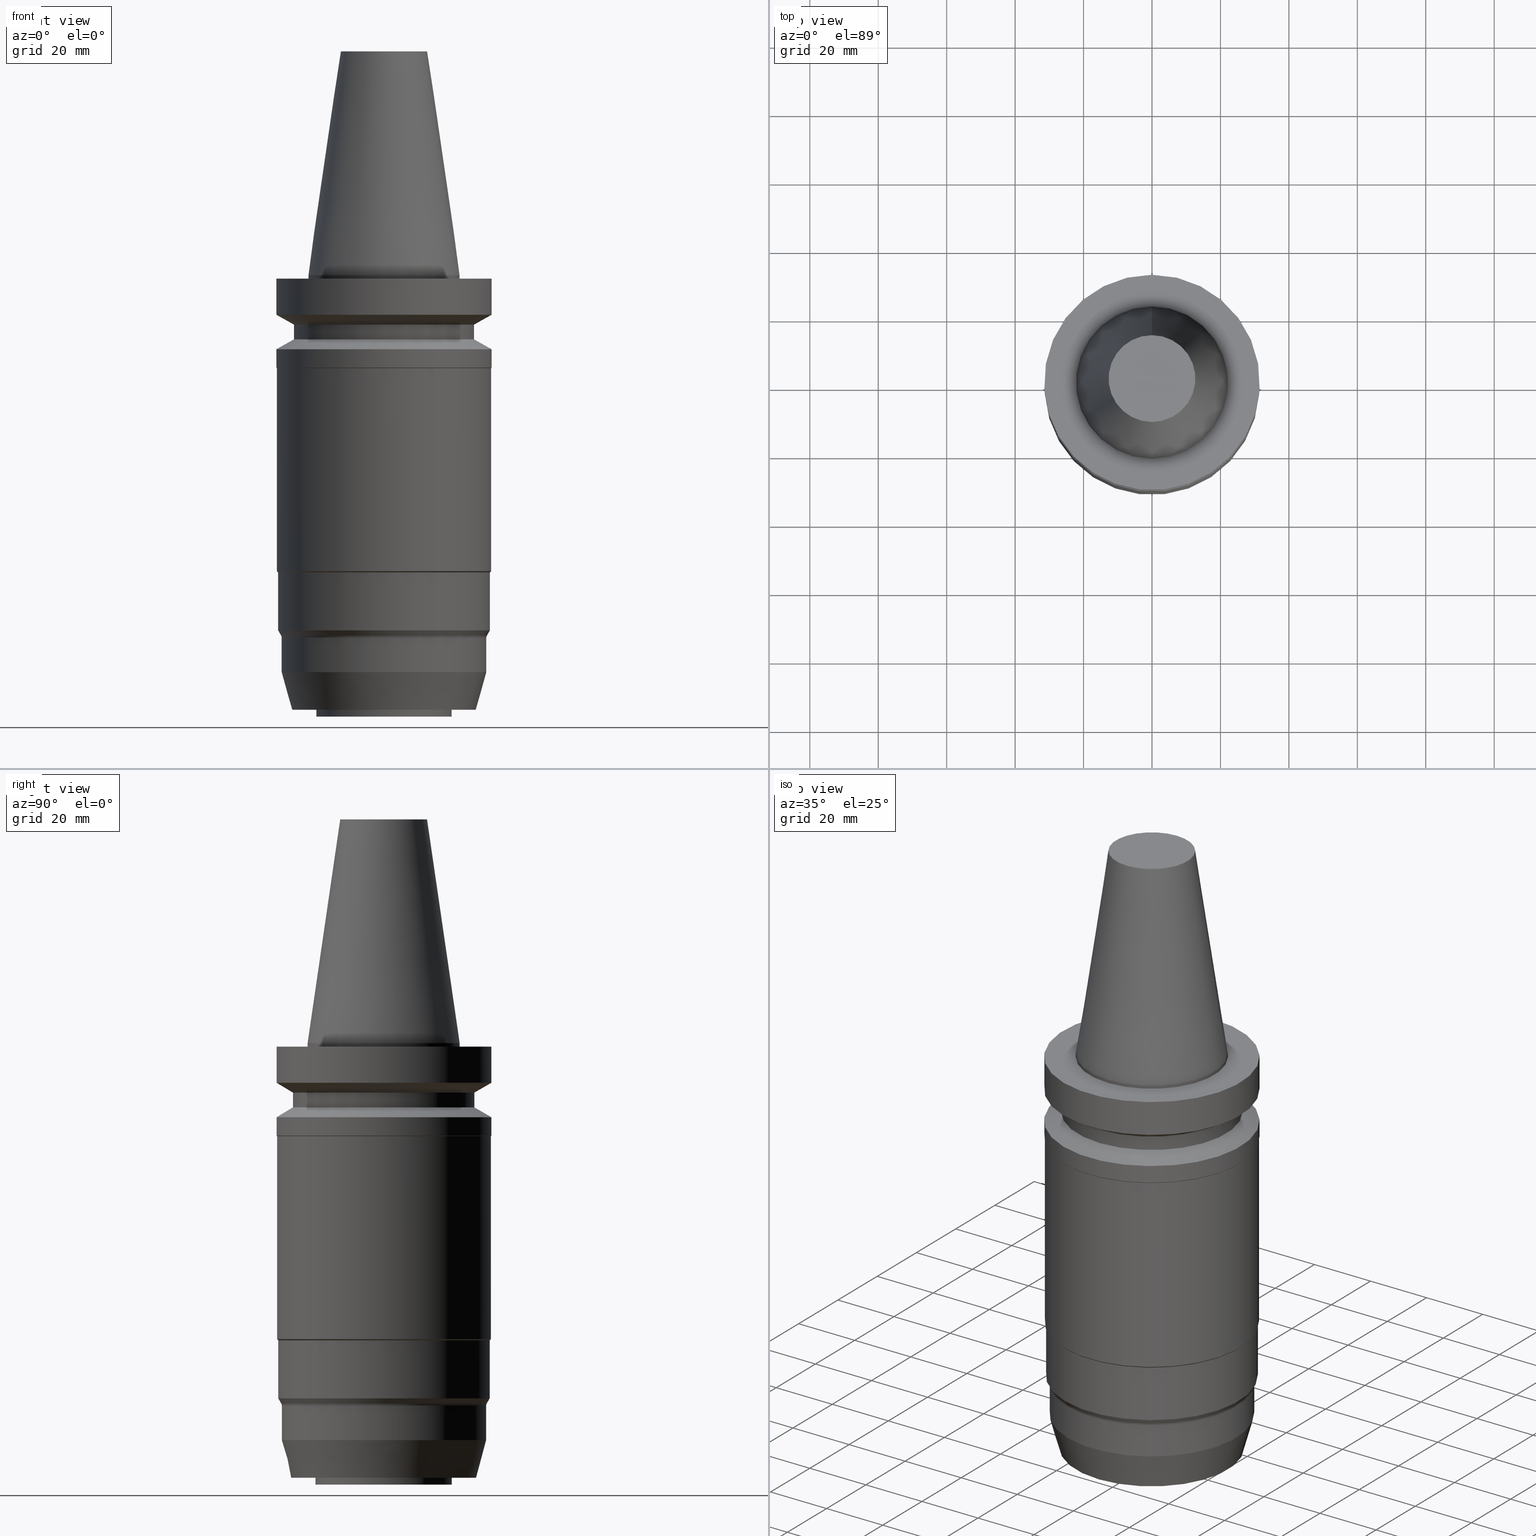
[diagram: canonical four-view strip — front | top / right | iso, engineering-drawing reading convention]
A machine part, canonical four-view strip (front | top / right | iso — engineering-drawing reading convention). The complete STEP part file that produces these views, byte-faithful:
ISO-10303-21;
HEADER;
FILE_DESCRIPTION((''),'1');
FILE_NAME('V:/90_\X2\53D65F9730C730FC30BF\X0\/00_\X2\6DE18DEF30C730FC30BF\X0\/ALL/BBT-BKUS\X2\FF76FF80FF9BFF78FF9E752852A05DE556F3\X0\201801/BBT40-MEGADS-A/BBT40-MEGA1.000DS-5A.stp','2018-02-07T03:58:34',(''),(''),'Spatial Interop R21 SP3','Kubotek KeyCreator 2011 V10.0.2 (22737)',' ');
FILE_SCHEMA(('automotive_design'));
ENDSEC;
DATA;
#1=MECHANICAL_DESIGN_GEOMETRIC_PRESENTATION_REPRESENTATION(' ',(#10,#11,#12,#13,#14,#15,#16,#17,#18,#19,#20,#21,#22,#23,#24,#25,#26,#27,#28,#29,#30,#31,#32,#33,#34,#35,#36,#37,#38,#39,#40,#41,#42,#43,#44,#45,#46,#47,#48,#49),#6);
#2=PRODUCT_DEFINITION_CONTEXT('',#50,'design');
#3=APPLICATION_PROTOCOL_DEFINITION('INTERNATIONAL STANDARD','automotive_design',1994,#50);
#4=PRODUCT_CATEGORY_RELATIONSHIP('NONE','NONE',#51,#52);
#5=SHAPE_DEFINITION_REPRESENTATION(#53,#54);
#6= (GEOMETRIC_REPRESENTATION_CONTEXT(3)GLOBAL_UNCERTAINTY_ASSIGNED_CONTEXT((#57))GLOBAL_UNIT_ASSIGNED_CONTEXT((#59,#60,#61))REPRESENTATION_CONTEXT('NONE','WORKSPACE'));
#10=STYLED_ITEM('',(#63,#64),#65);
#11=STYLED_ITEM('',(#66),#67);
#12=STYLED_ITEM('',(#68),#69);
#13=STYLED_ITEM('',(#70,#71),#72);
#14=STYLED_ITEM('',(#73,#74),#75);
#15=STYLED_ITEM('',(#76),#77);
#16=STYLED_ITEM('',(#78),#79);
#17=STYLED_ITEM('',(#80,#81),#82);
#18=STYLED_ITEM('',(#83,#84),#85);
#19=STYLED_ITEM('',(#86,#87),#88);
#20=STYLED_ITEM('',(#89),#90);
#21=STYLED_ITEM('',(#91,#92),#93);
#22=STYLED_ITEM('',(#94),#95);
#23=STYLED_ITEM('',(#96),#97);
#24=STYLED_ITEM('',(#98),#99);
#25=STYLED_ITEM('',(#100,#101),#102);
#26=STYLED_ITEM('',(#103,#104),#105);
#27=STYLED_ITEM('',(#106,#107),#108);
#28=STYLED_ITEM('',(#109),#110);
#29=STYLED_ITEM('',(#111),#112);
#30=STYLED_ITEM('',(#113,#114),#115);
#31=STYLED_ITEM('',(#116),#117);
#32=STYLED_ITEM('',(#118,#119),#120);
#33=STYLED_ITEM('',(#121,#122),#123);
#34=STYLED_ITEM('',(#124),#125);
#35=STYLED_ITEM('',(#126),#127);
#36=STYLED_ITEM('',(#128),#129);
#37=STYLED_ITEM('',(#130,#131),#132);
#38=STYLED_ITEM('',(#133),#134);
#39=STYLED_ITEM('',(#135,#136),#137);
#40=STYLED_ITEM('',(#138),#139);
#41=STYLED_ITEM('',(#140),#141);
#42=STYLED_ITEM('',(#142,#143),#144);
#43=STYLED_ITEM('',(#145,#146),#147);
#44=STYLED_ITEM('',(#148,#149),#150);
#45=STYLED_ITEM('',(#151,#152),#153);
#46=STYLED_ITEM('',(#154,#155),#156);
#47=STYLED_ITEM('',(#157,#158),#159);
#48=STYLED_ITEM('',(#160),#161);
#49=STYLED_ITEM('',(#162),#163);
#50=APPLICATION_CONTEXT(' ');
#51=PRODUCT_CATEGORY('part','NONE');
#52=PRODUCT_RELATED_PRODUCT_CATEGORY('detail',' ',(#164));
#53=PRODUCT_DEFINITION_SHAPE('NONE','NONE',#165);
#54=ADVANCED_BREP_SHAPE_REPRESENTATION('Unnamed[1]',(#153,#166),#6);
#57=UNCERTAINTY_MEASURE_WITH_UNIT(LENGTH_MEASURE(1.0E-006),#59,'','');
#59= (CONVERSION_BASED_UNIT('MILLIMETRE',#169)LENGTH_UNIT()NAMED_UNIT(#172));
#60= (NAMED_UNIT(#174)PLANE_ANGLE_UNIT()SI_UNIT($,.RADIAN.));
#61= (NAMED_UNIT(#174)SOLID_ANGLE_UNIT()SI_UNIT($,.STERADIAN.));
#63=PRESENTATION_STYLE_ASSIGNMENT((#180));
#64=PRESENTATION_STYLE_ASSIGNMENT((#181));
#65=ADVANCED_FACE('Unnamed[1]',(#182,#183),#184,.T.);
#66=PRESENTATION_STYLE_ASSIGNMENT((#185));
#67=EDGE_CURVE('Unnamed[1]',#186,#186,#187,.T.);
#68=PRESENTATION_STYLE_ASSIGNMENT((#188));
#69=EDGE_CURVE('Unnamed[1]',#189,#189,#190,.T.);
#70=PRESENTATION_STYLE_ASSIGNMENT((#191));
#71=PRESENTATION_STYLE_ASSIGNMENT((#192));
#72=ADVANCED_FACE('Unnamed[1]',(#193),#194,.T.);
#73=PRESENTATION_STYLE_ASSIGNMENT((#195));
#74=PRESENTATION_STYLE_ASSIGNMENT((#196));
#75=ADVANCED_FACE('Unnamed[1]',(#197,#198),#199,.F.);
#76=PRESENTATION_STYLE_ASSIGNMENT((#200));
#77=EDGE_CURVE('Unnamed[1]',#201,#201,#202,.T.);
#78=PRESENTATION_STYLE_ASSIGNMENT((#203));
#79=EDGE_CURVE('Unnamed[1]',#204,#204,#205,.T.);
#80=PRESENTATION_STYLE_ASSIGNMENT((#206));
#81=PRESENTATION_STYLE_ASSIGNMENT((#207));
#82=ADVANCED_FACE('Unnamed[1]',(#208,#209),#210,.T.);
#83=PRESENTATION_STYLE_ASSIGNMENT((#211));
#84=PRESENTATION_STYLE_ASSIGNMENT((#212));
#85=ADVANCED_FACE('Unnamed[1]',(#213,#214),#215,.T.);
#86=PRESENTATION_STYLE_ASSIGNMENT((#216));
#87=PRESENTATION_STYLE_ASSIGNMENT((#217));
#88=ADVANCED_FACE('Unnamed[1]',(#218),#219,.T.);
#89=PRESENTATION_STYLE_ASSIGNMENT((#220));
#90=EDGE_CURVE('Unnamed[1]',#221,#221,#222,.T.);
#91=PRESENTATION_STYLE_ASSIGNMENT((#223));
#92=PRESENTATION_STYLE_ASSIGNMENT((#224));
#93=ADVANCED_FACE('Unnamed[1]',(#225,#226),#227,.T.);
#94=PRESENTATION_STYLE_ASSIGNMENT((#228));
#95=EDGE_CURVE('Unnamed[1]',#229,#229,#230,.T.);
#96=PRESENTATION_STYLE_ASSIGNMENT((#231));
#97=EDGE_CURVE('Unnamed[1]',#232,#232,#233,.T.);
#98=PRESENTATION_STYLE_ASSIGNMENT((#234));
#99=EDGE_CURVE('Unnamed[1]',#235,#235,#236,.T.);
#100=PRESENTATION_STYLE_ASSIGNMENT((#237));
#101=PRESENTATION_STYLE_ASSIGNMENT((#238));
#102=ADVANCED_FACE('Unnamed[1]',(#239,#240),#241,.T.);
#103=PRESENTATION_STYLE_ASSIGNMENT((#242));
#104=PRESENTATION_STYLE_ASSIGNMENT((#243));
#105=ADVANCED_FACE('Unnamed[1]',(#244,#245),#246,.T.);
#106=PRESENTATION_STYLE_ASSIGNMENT((#247));
#107=PRESENTATION_STYLE_ASSIGNMENT((#248));
#108=ADVANCED_FACE('Unnamed[1]',(#249,#250),#251,.T.);
#109=PRESENTATION_STYLE_ASSIGNMENT((#252));
#110=EDGE_CURVE('Unnamed[1]',#253,#253,#254,.T.);
#111=PRESENTATION_STYLE_ASSIGNMENT((#255));
#112=EDGE_CURVE('Unnamed[1]',#256,#256,#257,.T.);
#113=PRESENTATION_STYLE_ASSIGNMENT((#258));
#114=PRESENTATION_STYLE_ASSIGNMENT((#259));
#115=ADVANCED_FACE('Unnamed[1]',(#260,#261),#262,.T.);
#116=PRESENTATION_STYLE_ASSIGNMENT((#263));
#117=EDGE_CURVE('Unnamed[1]',#264,#264,#265,.T.);
#118=PRESENTATION_STYLE_ASSIGNMENT((#266));
#119=PRESENTATION_STYLE_ASSIGNMENT((#267));
#120=ADVANCED_FACE('Unnamed[1]',(#268,#269),#270,.T.);
#121=PRESENTATION_STYLE_ASSIGNMENT((#271));
#122=PRESENTATION_STYLE_ASSIGNMENT((#272));
#123=ADVANCED_FACE('Unnamed[1]',(#273,#274),#275,.T.);
#124=PRESENTATION_STYLE_ASSIGNMENT((#276));
#125=EDGE_CURVE('Unnamed[1]',#277,#277,#278,.T.);
#126=PRESENTATION_STYLE_ASSIGNMENT((#279));
#127=EDGE_CURVE('Unnamed[1]',#280,#280,#281,.T.);
#128=PRESENTATION_STYLE_ASSIGNMENT((#282));
#129=EDGE_CURVE('Unnamed[1]',#283,#283,#284,.T.);
#130=PRESENTATION_STYLE_ASSIGNMENT((#285));
#131=PRESENTATION_STYLE_ASSIGNMENT((#286));
#132=ADVANCED_FACE('Unnamed[1]',(#287,#288),#289,.T.);
#133=PRESENTATION_STYLE_ASSIGNMENT((#290));
#134=EDGE_CURVE('Unnamed[1]',#291,#291,#292,.T.);
#135=PRESENTATION_STYLE_ASSIGNMENT((#293));
#136=PRESENTATION_STYLE_ASSIGNMENT((#294));
#137=ADVANCED_FACE('Unnamed[1]',(#295,#296),#297,.T.);
#138=PRESENTATION_STYLE_ASSIGNMENT((#298));
#139=EDGE_CURVE('Unnamed[1]',#299,#299,#300,.T.);
#140=PRESENTATION_STYLE_ASSIGNMENT((#301));
#141=EDGE_CURVE('Unnamed[1]',#302,#302,#303,.T.);
#142=PRESENTATION_STYLE_ASSIGNMENT((#304));
#143=PRESENTATION_STYLE_ASSIGNMENT((#305));
#144=ADVANCED_FACE('Unnamed[1]',(#306,#307),#308,.T.);
#145=PRESENTATION_STYLE_ASSIGNMENT((#309));
#146=PRESENTATION_STYLE_ASSIGNMENT((#310));
#147=ADVANCED_FACE('Unnamed[1]',(#311,#312),#313,.T.);
#148=PRESENTATION_STYLE_ASSIGNMENT((#314));
#149=PRESENTATION_STYLE_ASSIGNMENT((#315));
#150=ADVANCED_FACE('Unnamed[1]',(#316,#317),#318,.T.);
#151=PRESENTATION_STYLE_ASSIGNMENT((#319));
#152=PRESENTATION_STYLE_ASSIGNMENT((#320));
#153=MANIFOLD_SOLID_BREP('Unnamed[1]',#321);
#154=PRESENTATION_STYLE_ASSIGNMENT((#322));
#155=PRESENTATION_STYLE_ASSIGNMENT((#323));
#156=ADVANCED_FACE('Unnamed[1]',(#324,#325),#326,.T.);
#157=PRESENTATION_STYLE_ASSIGNMENT((#327));
#158=PRESENTATION_STYLE_ASSIGNMENT((#328));
#159=ADVANCED_FACE('Unnamed[1]',(#329,#330),#331,.T.);
#160=PRESENTATION_STYLE_ASSIGNMENT((#332));
#161=EDGE_CURVE('Unnamed[1]',#333,#333,#334,.T.);
#162=PRESENTATION_STYLE_ASSIGNMENT((#335));
#163=EDGE_CURVE('Unnamed[1]',#336,#336,#337,.T.);
#164=PRODUCT('Unnamed[1]','Unnamed[1]','PART-Unnamed[1]-DESC',(#338));
#165=PRODUCT_DEFINITION('NONE','NONE',#339,#2);
#166=AXIS2_PLACEMENT_3D('',#340,#341,#342);
#169=LENGTH_MEASURE_WITH_UNIT(LENGTH_MEASURE(1.0),#343);
#172=DIMENSIONAL_EXPONENTS(1.0,0.0,0.0,0.0,0.0,0.0,0.0);
#174=DIMENSIONAL_EXPONENTS(0.0,0.0,0.0,0.0,0.0,0.0,0.0);
#180=SURFACE_STYLE_USAGE(.BOTH.,#344);
#181=CURVE_STYLE('',#345,POSITIVE_LENGTH_MEASURE(1000.0),#346);
#182=FACE_BOUND('',#347,.T.);
#183=FACE_BOUND('',#348,.T.);
#184=CONICAL_SURFACE('',#349,28.4750000000001,0.261799387799168);
#185=CURVE_STYLE('',#350,POSITIVE_LENGTH_MEASURE(1000.0),#351);
#186=VERTEX_POINT('',#352);
#187=CIRCLE('',#353,12.6875000000001);
#188=CURVE_STYLE('',#354,POSITIVE_LENGTH_MEASURE(1000.0),#355);
#189=VERTEX_POINT('',#356);
#190=CIRCLE('',#357,19.9200000000013);
#191=SURFACE_STYLE_USAGE(.BOTH.,#358);
#192=CURVE_STYLE('',#359,POSITIVE_LENGTH_MEASURE(1000.0),#360);
#193=FACE_OUTER_BOUND('',#361,.T.);
#194=PLANE('',#362);
#195=SURFACE_STYLE_USAGE(.BOTH.,#363);
#196=CURVE_STYLE('',#364,POSITIVE_LENGTH_MEASURE(1000.0),#365);
#197=FACE_BOUND('',#366,.T.);
#198=FACE_BOUND('',#367,.T.);
#199=TOROIDAL_SURFACE('',#368,32.1500000000011,1.0);
#200=CURVE_STYLE('',#369,POSITIVE_LENGTH_MEASURE(1000.0),#370);
#201=VERTEX_POINT('',#371);
#202=CIRCLE('',#372,29.9499999999999);
#203=CURVE_STYLE('',#373,POSITIVE_LENGTH_MEASURE(1000.0),#374);
#204=VERTEX_POINT('',#375);
#205=CIRCLE('',#376,31.4999999999996);
#206=SURFACE_STYLE_USAGE(.BOTH.,#377);
#207=CURVE_STYLE('',#378,POSITIVE_LENGTH_MEASURE(1000.0),#379);
#208=FACE_BOUND('',#380,.T.);
#209=FACE_BOUND('',#381,.T.);
#210=CYLINDRICAL_SURFACE('',#382,31.349999999999);
#211=SURFACE_STYLE_USAGE(.BOTH.,#383);
#212=CURVE_STYLE('',#384,POSITIVE_LENGTH_MEASURE(1000.0),#385);
#213=FACE_BOUND('',#386,.T.);
#214=FACE_BOUND('',#387,.T.);
#215=CONICAL_SURFACE('',#388,29.0000000000003,1.04719755119651);
#216=SURFACE_STYLE_USAGE(.BOTH.,#389);
#217=CURVE_STYLE('',#390,POSITIVE_LENGTH_MEASURE(1000.0),#391);
#218=FACE_OUTER_BOUND('',#392,.T.);
#219=PLANE('',#393);
#220=CURVE_STYLE('',#394,POSITIVE_LENGTH_MEASURE(1000.0),#395);
#221=VERTEX_POINT('',#396);
#222=CIRCLE('',#397,22.225);
#223=SURFACE_STYLE_USAGE(.BOTH.,#398);
#224=CURVE_STYLE('',#399,POSITIVE_LENGTH_MEASURE(1000.0),#400);
#225=FACE_BOUND('',#401,.T.);
#226=FACE_BOUND('',#402,.T.);
#227=CONICAL_SURFACE('',#403,30.5419872981074,0.523598775596922);
#228=CURVE_STYLE('',#404,POSITIVE_LENGTH_MEASURE(1000.0),#405);
#229=VERTEX_POINT('',#406);
#230=CIRCLE('',#407,26.5);
#231=CURVE_STYLE('',#408,POSITIVE_LENGTH_MEASURE(1000.0),#409);
#232=VERTEX_POINT('',#410);
#233=CIRCLE('',#411,31.5000000000005);
#234=CURVE_STYLE('',#412,POSITIVE_LENGTH_MEASURE(1000.0),#413);
#235=VERTEX_POINT('',#414);
#236=CIRCLE('',#415,26.9999999999999);
#237=SURFACE_STYLE_USAGE(.BOTH.,#416);
#238=CURVE_STYLE('',#417,POSITIVE_LENGTH_MEASURE(1000.0),#418);
#239=FACE_OUTER_BOUND('',#419,.T.);
#240=FACE_BOUND('',#420,.T.);
#241=PLANE('',#421);
#242=SURFACE_STYLE_USAGE(.BOTH.,#422);
#243=CURVE_STYLE('',#423,POSITIVE_LENGTH_MEASURE(1000.0),#424);
#244=FACE_BOUND('',#425,.T.);
#245=FACE_BOUND('',#426,.T.);
#246=CYLINDRICAL_SURFACE('',#427,29.9500000000001);
#247=SURFACE_STYLE_USAGE(.BOTH.,#428);
#248=CURVE_STYLE('',#429,POSITIVE_LENGTH_MEASURE(1000.0),#430);
#249=FACE_BOUND('',#431,.T.);
#250=FACE_BOUND('',#432,.T.);
#251=CONICAL_SURFACE('',#433,17.45625,0.144812498238936);
#252=CURVE_STYLE('',#434,POSITIVE_LENGTH_MEASURE(1000.0),#435);
#253=VERTEX_POINT('',#436);
#254=CIRCLE('',#437,26.4999999999994);
#255=CURVE_STYLE('',#438,POSITIVE_LENGTH_MEASURE(1000.0),#439);
#256=VERTEX_POINT('',#440);
#257=CIRCLE('',#441,31.5000000000007);
#258=SURFACE_STYLE_USAGE(.BOTH.,#442);
#259=CURVE_STYLE('',#443,POSITIVE_LENGTH_MEASURE(1000.0),#444);
#260=FACE_BOUND('',#445,.T.);
#261=FACE_OUTER_BOUND('',#446,.T.);
#262=PLANE('',#447);
#263=CURVE_STYLE('',#448,POSITIVE_LENGTH_MEASURE(1000.0),#449);
#264=VERTEX_POINT('',#450);
#265=CIRCLE('',#451,31.0);
#266=SURFACE_STYLE_USAGE(.BOTH.,#452);
#267=CURVE_STYLE('',#453,POSITIVE_LENGTH_MEASURE(1000.0),#454);
#268=FACE_BOUND('',#455,.T.);
#269=FACE_BOUND('',#456,.T.);
#270=CYLINDRICAL_SURFACE('',#457,22.225);
#271=SURFACE_STYLE_USAGE(.BOTH.,#458);
#272=CURVE_STYLE('',#459,POSITIVE_LENGTH_MEASURE(1000.0),#460);
#273=FACE_BOUND('',#461,.T.);
#274=FACE_BOUND('',#462,.T.);
#275=CONICAL_SURFACE('',#463,31.1749999999993,0.785398163406218);
#276=CURVE_STYLE('',#464,POSITIVE_LENGTH_MEASURE(1000.0),#465);
#277=VERTEX_POINT('',#466);
#278=CIRCLE('',#467,31.3499999999986);
#279=CURVE_STYLE('',#468,POSITIVE_LENGTH_MEASURE(1000.0),#469);
#280=VERTEX_POINT('',#470);
#281=CIRCLE('',#471,31.5000000000003);
#282=CURVE_STYLE('',#472,POSITIVE_LENGTH_MEASURE(1000.0),#473);
#283=VERTEX_POINT('',#474);
#284=CIRCLE('',#475,30.0839745962148);
#285=SURFACE_STYLE_USAGE(.BOTH.,#476);
#286=CURVE_STYLE('',#477,POSITIVE_LENGTH_MEASURE(1000.0),#478);
#287=FACE_BOUND('',#479,.T.);
#288=FACE_BOUND('',#480,.T.);
#289=CONICAL_SURFACE('',#481,30.0169872981073,0.26179938779847);
#290=CURVE_STYLE('',#482,POSITIVE_LENGTH_MEASURE(1000.0),#483);
#291=VERTEX_POINT('',#484);
#292=CIRCLE('',#485,22.225);
#293=SURFACE_STYLE_USAGE(.BOTH.,#486);
#294=CURVE_STYLE('',#487,POSITIVE_LENGTH_MEASURE(1000.0),#488);
#295=FACE_BOUND('',#489,.T.);
#296=FACE_BOUND('',#490,.T.);
#297=CYLINDRICAL_SURFACE('',#491,31.0);
#298=CURVE_STYLE('',#492,POSITIVE_LENGTH_MEASURE(1000.0),#493);
#299=VERTEX_POINT('',#494);
#300=CIRCLE('',#495,29.9500000000003);
#301=CURVE_STYLE('',#496,POSITIVE_LENGTH_MEASURE(1000.0),#497);
#302=VERTEX_POINT('',#498);
#303=CIRCLE('',#499,19.9200000000008);
#304=SURFACE_STYLE_USAGE(.BOTH.,#500);
#305=CURVE_STYLE('',#501,POSITIVE_LENGTH_MEASURE(1000.0),#502);
#306=FACE_BOUND('',#503,.T.);
#307=FACE_BOUND('',#504,.T.);
#308=CYLINDRICAL_SURFACE('',#505,31.5000000000006);
#309=SURFACE_STYLE_USAGE(.BOTH.,#506);
#310=CURVE_STYLE('',#507,POSITIVE_LENGTH_MEASURE(1000.0),#508);
#311=FACE_BOUND('',#509,.T.);
#312=FACE_BOUND('',#510,.T.);
#313=CYLINDRICAL_SURFACE('',#511,26.4999999999997);
#314=SURFACE_STYLE_USAGE(.BOTH.,#512);
#315=CURVE_STYLE('',#513,POSITIVE_LENGTH_MEASURE(1000.0),#514);
#316=FACE_BOUND('',#515,.T.);
#317=FACE_BOUND('',#516,.T.);
#318=CONICAL_SURFACE('',#517,28.9999999999999,1.04719755119657);
#319=SURFACE_STYLE_USAGE(.BOTH.,#518);
#320=CURVE_STYLE('',#519,POSITIVE_LENGTH_MEASURE(1000.0),#520);
#321=CLOSED_SHELL('',(#72,#108,#120,#102,#159,#150,#147,#85,#144,#75,#82,#123,#137,#93,#132,#105,#65,#115,#156,#88));
#322=SURFACE_STYLE_USAGE(.BOTH.,#521);
#323=CURVE_STYLE('',#522,POSITIVE_LENGTH_MEASURE(1000.0),#523);
#324=FACE_BOUND('',#524,.T.);
#325=FACE_BOUND('',#525,.T.);
#326=CYLINDRICAL_SURFACE('',#526,19.9200000000011);
#327=SURFACE_STYLE_USAGE(.BOTH.,#527);
#328=CURVE_STYLE('',#528,POSITIVE_LENGTH_MEASURE(1000.0),#529);
#329=FACE_BOUND('',#530,.T.);
#330=FACE_BOUND('',#531,.T.);
#331=CYLINDRICAL_SURFACE('',#532,31.5);
#332=CURVE_STYLE('',#533,POSITIVE_LENGTH_MEASURE(1000.0),#534);
#333=VERTEX_POINT('',#535);
#334=CIRCLE('',#536,31.0);
#335=CURVE_STYLE('',#537,POSITIVE_LENGTH_MEASURE(1000.0),#538);
#336=VERTEX_POINT('',#539);
#337=CIRCLE('',#540,31.3499999999993);
#338=PRODUCT_CONTEXT('',#50,'mechanical');
#339=PRODUCT_DEFINITION_FORMATION_WITH_SPECIFIED_SOURCE(' ','NONE',#164,.NOT_KNOWN.);
#340=CARTESIAN_POINT('',(0.0,0.0,0.0));
#341=DIRECTION('',(0.0,0.0,1.0));
#342=DIRECTION('',(1.0,0.0,0.0));
#343= (NAMED_UNIT(#172)LENGTH_UNIT()SI_UNIT(.MILLI.,.METRE.));
#344=SURFACE_SIDE_STYLE('',(#542));
#345=DRAUGHTING_PRE_DEFINED_CURVE_FONT('continuous');
#346=COLOUR_RGB('',0.0,1.0,0.0);
#347=EDGE_LOOP('',(#543));
#348=EDGE_LOOP('',(#544));
#349=AXIS2_PLACEMENT_3D('',#545,#546,#547);
#350=DRAUGHTING_PRE_DEFINED_CURVE_FONT('continuous');
#351=COLOUR_RGB('',0.0,1.0,0.0);
#352=CARTESIAN_POINT('',(-4.00459503321185E-015,12.6875000000002,65.4000000000001));
#353=AXIS2_PLACEMENT_3D('',#548,#549,#550);
#354=DRAUGHTING_PRE_DEFINED_CURVE_FONT('continuous');
#355=COLOUR_RGB('',0.0,1.0,0.0);
#356=CARTESIAN_POINT('',(7.77650717458566E-015,19.9200000000014,-127.0));
#357=AXIS2_PLACEMENT_3D('',#551,#552,#553);
#358=SURFACE_SIDE_STYLE('',(#554));
#359=DRAUGHTING_PRE_DEFINED_CURVE_FONT('continuous');
#360=COLOUR_RGB('',0.0,1.0,0.0);
#361=EDGE_LOOP('',(#555));
#362=AXIS2_PLACEMENT_3D('',#556,#557,#558);
#363=SURFACE_SIDE_STYLE('',(#559));
#364=DRAUGHTING_PRE_DEFINED_CURVE_FONT('continuous');
#365=COLOUR_RGB('',0.0,1.0,0.0);
#366=EDGE_LOOP('',(#560));
#367=EDGE_LOOP('',(#561));
#368=AXIS2_PLACEMENT_3D('',#562,#563,#564);
#369=DRAUGHTING_PRE_DEFINED_CURVE_FONT('continuous');
#370=COLOUR_RGB('',0.0,1.0,0.0);
#371=CARTESIAN_POINT('',(6.4825422555403E-015,29.95,-105.867949192432));
#372=AXIS2_PLACEMENT_3D('',#565,#566,#567);
#373=DRAUGHTING_PRE_DEFINED_CURVE_FONT('continuous');
#374=COLOUR_RGB('',0.0,1.0,0.0);
#375=CARTESIAN_POINT('',(6.12323399573568E-017,31.4999999999997,-0.999999999999825));
#376=AXIS2_PLACEMENT_3D('',#568,#569,#570);
#377=SURFACE_SIDE_STYLE('',(#571));
#378=DRAUGHTING_PRE_DEFINED_CURVE_FONT('continuous');
#379=COLOUR_RGB('',0.0,1.0,0.0);
#380=EDGE_LOOP('',(#572));
#381=EDGE_LOOP('',(#573));
#382=AXIS2_PLACEMENT_3D('',#574,#575,#576);
#383=SURFACE_SIDE_STYLE('',(#577));
#384=DRAUGHTING_PRE_DEFINED_CURVE_FONT('continuous');
#385=COLOUR_RGB('',0.0,1.0,0.0);
#386=EDGE_LOOP('',(#578));
#387=EDGE_LOOP('',(#579));
#388=AXIS2_PLACEMENT_3D('',#580,#581,#582);
#389=SURFACE_SIDE_STYLE('',(#583));
#390=DRAUGHTING_PRE_DEFINED_CURVE_FONT('continuous');
#391=COLOUR_RGB('',0.0,1.0,0.0);
#392=EDGE_LOOP('',(#584));
#393=AXIS2_PLACEMENT_3D('',#585,#586,#587);
#394=DRAUGHTING_PRE_DEFINED_CURVE_FONT('continuous');
#395=COLOUR_RGB('',0.0,1.0,0.0);
#396=CARTESIAN_POINT('',(6.12323399573622E-017,22.2250000000001,-0.999999999999912));
#397=AXIS2_PLACEMENT_3D('',#588,#589,#590);
#398=SURFACE_SIDE_STYLE('',(#591));
#399=DRAUGHTING_PRE_DEFINED_CURVE_FONT('continuous');
#400=COLOUR_RGB('',0.0,1.0,0.0);
#401=EDGE_LOOP('',(#592));
#402=EDGE_LOOP('',(#593));
#403=AXIS2_PLACEMENT_3D('',#594,#595,#596);
#404=DRAUGHTING_PRE_DEFINED_CURVE_FONT('continuous');
#405=COLOUR_RGB('',0.0,1.0,0.0);
#406=CARTESIAN_POINT('',(1.1479681728942E-015,26.5,-18.7477430013855));
#407=AXIS2_PLACEMENT_3D('',#597,#598,#599);
#408=DRAUGHTING_PRE_DEFINED_CURVE_FONT('continuous');
#409=COLOUR_RGB('',0.0,1.0,0.0);
#410=CARTESIAN_POINT('',(1.65353521374986E-015,31.5000000000005,-27.004279354686));
#411=AXIS2_PLACEMENT_3D('',#600,#601,#602);
#412=DRAUGHTING_PRE_DEFINED_CURVE_FONT('continuous');
#413=COLOUR_RGB('',0.0,1.0,0.0);
#414=CARTESIAN_POINT('',(7.77650717458566E-015,26.9999999999999,-127.0));
#415=AXIS2_PLACEMENT_3D('',#603,#604,#605);
#416=SURFACE_SIDE_STYLE('',(#606));
#417=DRAUGHTING_PRE_DEFINED_CURVE_FONT('continuous');
#418=COLOUR_RGB('',0.0,1.0,0.0);
#419=EDGE_LOOP('',(#607));
#420=EDGE_LOOP('',(#608));
#421=AXIS2_PLACEMENT_3D('',#609,#610,#611);
#422=SURFACE_SIDE_STYLE('',(#612));
#423=DRAUGHTING_PRE_DEFINED_CURVE_FONT('continuous');
#424=COLOUR_RGB('',0.0,1.0,0.0);
#425=EDGE_LOOP('',(#613));
#426=EDGE_LOOP('',(#614));
#427=AXIS2_PLACEMENT_3D('',#615,#616,#617);
#428=SURFACE_SIDE_STYLE('',(#618));
#429=DRAUGHTING_PRE_DEFINED_CURVE_FONT('continuous');
#430=COLOUR_RGB('',0.0,1.0,0.0);
#431=EDGE_LOOP('',(#619));
#432=EDGE_LOOP('',(#620));
#433=AXIS2_PLACEMENT_3D('',#621,#622,#623);
#434=DRAUGHTING_PRE_DEFINED_CURVE_FONT('continuous');
#435=COLOUR_RGB('',0.0,1.0,0.0);
#436=CARTESIAN_POINT('',(8.8494551369045E-016,26.4999999999995,-14.4522569986152));
#437=AXIS2_PLACEMENT_3D('',#624,#625,#626);
#438=DRAUGHTING_PRE_DEFINED_CURVE_FONT('continuous');
#439=COLOUR_RGB('',0.0,1.0,0.0);
#440=CARTESIAN_POINT('',(1.32473071268175E-015,31.5000000000008,-21.6344943473347));
#441=AXIS2_PLACEMENT_3D('',#627,#628,#629);
#442=SURFACE_SIDE_STYLE('',(#630));
#443=DRAUGHTING_PRE_DEFINED_CURVE_FONT('continuous');
#444=COLOUR_RGB('',0.0,1.0,0.0);
#445=EDGE_LOOP('',(#631));
#446=EDGE_LOOP('',(#632));
#447=AXIS2_PLACEMENT_3D('',#633,#634,#635);
#448=DRAUGHTING_PRE_DEFINED_CURVE_FONT('continuous');
#449=COLOUR_RGB('',0.0,1.0,0.0);
#450=CARTESIAN_POINT('',(5.318028725297E-015,31.0000000000001,-86.8499999999938));
#451=AXIS2_PLACEMENT_3D('',#636,#637,#638);
#452=SURFACE_SIDE_STYLE('',(#639));
#453=DRAUGHTING_PRE_DEFINED_CURVE_FONT('continuous');
#454=COLOUR_RGB('',0.0,1.0,0.0);
#455=EDGE_LOOP('',(#640));
#456=EDGE_LOOP('',(#641));
#457=AXIS2_PLACEMENT_3D('',#642,#643,#644);
#458=SURFACE_SIDE_STYLE('',(#645));
#459=DRAUGHTING_PRE_DEFINED_CURVE_FONT('continuous');
#460=COLOUR_RGB('',0.0,1.0,0.0);
#461=EDGE_LOOP('',(#646));
#462=EDGE_LOOP('',(#647));
#463=AXIS2_PLACEMENT_3D('',#648,#649,#650);
#464=DRAUGHTING_PRE_DEFINED_CURVE_FONT('continuous');
#465=COLOUR_RGB('',0.0,1.0,0.0);
#466=CARTESIAN_POINT('',(5.29659740631239E-015,31.3499999999987,-86.5000000000014));
#467=AXIS2_PLACEMENT_3D('',#651,#652,#653);
#468=DRAUGHTING_PRE_DEFINED_CURVE_FONT('continuous');
#469=COLOUR_RGB('',0.0,1.0,0.0);
#470=CARTESIAN_POINT('',(7.08182973902924E-016,31.5000000000004,-11.5655056526664));
#471=AXIS2_PLACEMENT_3D('',#654,#655,#656);
#472=DRAUGHTING_PRE_DEFINED_CURVE_FONT('continuous');
#473=COLOUR_RGB('',0.0,1.0,0.0);
#474=CARTESIAN_POINT('',(6.45192608556169E-015,30.0839745962148,-105.367949192433));
#475=AXIS2_PLACEMENT_3D('',#657,#658,#659);
#476=SURFACE_SIDE_STYLE('',(#660));
#477=DRAUGHTING_PRE_DEFINED_CURVE_FONT('continuous');
#478=COLOUR_RGB('',0.0,1.0,0.0);
#479=EDGE_LOOP('',(#661));
#480=EDGE_LOOP('',(#662));
#481=AXIS2_PLACEMENT_3D('',#663,#664,#665);
#482=DRAUGHTING_PRE_DEFINED_CURVE_FONT('continuous');
#483=COLOUR_RGB('',0.0,1.0,0.0);
#484=CARTESIAN_POINT('',(1.71319921032766E-029,22.2250000000001,-2.8153873565375E-013));
#485=AXIS2_PLACEMENT_3D('',#666,#667,#668);
#486=SURFACE_SIDE_STYLE('',(#669));
#487=DRAUGHTING_PRE_DEFINED_CURVE_FONT('continuous');
#488=COLOUR_RGB('',0.0,1.0,0.0);
#489=EDGE_LOOP('',(#670));
#490=EDGE_LOOP('',(#671));
#491=AXIS2_PLACEMENT_3D('',#672,#673,#674);
#492=DRAUGHTING_PRE_DEFINED_CURVE_FONT('continuous');
#493=COLOUR_RGB('',0.0,1.0,0.0);
#494=CARTESIAN_POINT('',(7.10236667341331E-015,29.9500000000003,-115.990450117671));
#495=AXIS2_PLACEMENT_3D('',#675,#676,#677);
#496=DRAUGHTING_PRE_DEFINED_CURVE_FONT('continuous');
#497=COLOUR_RGB('',0.0,1.0,0.0);
#498=CARTESIAN_POINT('',(7.89897185450044E-015,19.9200000000008,-129.0));
#499=AXIS2_PLACEMENT_3D('',#678,#679,#680);
#500=SURFACE_SIDE_STYLE('',(#681));
#501=DRAUGHTING_PRE_DEFINED_CURVE_FONT('continuous');
#502=COLOUR_RGB('',0.0,1.0,0.0);
#503=EDGE_LOOP('',(#682));
#504=EDGE_LOOP('',(#683));
#505=AXIS2_PLACEMENT_3D('',#684,#685,#686);
#506=SURFACE_SIDE_STYLE('',(#687));
#507=DRAUGHTING_PRE_DEFINED_CURVE_FONT('continuous');
#508=COLOUR_RGB('',0.0,1.0,0.0);
#509=EDGE_LOOP('',(#688));
#510=EDGE_LOOP('',(#689));
#511=AXIS2_PLACEMENT_3D('',#690,#691,#692);
#512=SURFACE_SIDE_STYLE('',(#693));
#513=DRAUGHTING_PRE_DEFINED_CURVE_FONT('continuous');
#514=COLOUR_RGB('',0.0,1.0,0.0);
#515=EDGE_LOOP('',(#694));
#516=EDGE_LOOP('',(#695));
#517=AXIS2_PLACEMENT_3D('',#696,#697,#698);
#518=SURFACE_SIDE_STYLE('',(#699));
#519=DRAUGHTING_PRE_DEFINED_CURVE_FONT('continuous');
#520=COLOUR_RGB('',0.0,1.0,0.0);
#521=SURFACE_SIDE_STYLE('',(#700));
#522=DRAUGHTING_PRE_DEFINED_CURVE_FONT('continuous');
#523=COLOUR_RGB('',0.0,1.0,0.0);
#524=EDGE_LOOP('',(#701));
#525=EDGE_LOOP('',(#702));
#526=AXIS2_PLACEMENT_3D('',#703,#704,#705);
#527=SURFACE_SIDE_STYLE('',(#706));
#528=DRAUGHTING_PRE_DEFINED_CURVE_FONT('continuous');
#529=COLOUR_RGB('',0.0,1.0,0.0);
#530=EDGE_LOOP('',(#707));
#531=EDGE_LOOP('',(#708));
#532=AXIS2_PLACEMENT_3D('',#709,#710,#711);
#533=DRAUGHTING_PRE_DEFINED_CURVE_FONT('continuous');
#534=COLOUR_RGB('',0.0,1.0,0.0);
#535=CARTESIAN_POINT('',(6.35477469943162E-015,31.0,-103.781346652048));
#536=AXIS2_PLACEMENT_3D('',#712,#713,#714);
#537=DRAUGHTING_PRE_DEFINED_CURVE_FONT('continuous');
#538=COLOUR_RGB('',0.0,1.0,0.0);
#539=CARTESIAN_POINT('',(1.66332835952535E-015,31.3499999999994,-27.1642135623663));
#540=AXIS2_PLACEMENT_3D('',#715,#716,#717);
#542=SURFACE_STYLE_FILL_AREA(#718);
#543=ORIENTED_EDGE('',*,*,#99,.F.);
#544=ORIENTED_EDGE('',*,*,#139,.T.);
#545=CARTESIAN_POINT('',(7.43943692399949E-015,6.6406693334031E-014,-121.495225058835));
#546=DIRECTION('',(-6.12323399573677E-017,5.72747493517908E-017,1.0));
#547=DIRECTION('',(-1.32008580749227E-033,1.0,-5.72747493517908E-017));
#548=CARTESIAN_POINT('',(-4.00459503321185E-015,7.71110705043098E-014,65.4000000000001));
#549=DIRECTION('',(6.12323399573677E-017,-5.72747493517302E-017,-1.0));
#550=DIRECTION('',(-1.32008580750384E-033,1.0,-5.72747493517302E-017));
#551=CARTESIAN_POINT('',(7.77650717458566E-015,6.60914087290381E-014,-127.0));
#552=DIRECTION('',(6.12323399573677E-017,-5.72747493516526E-017,-1.0));
#553=DIRECTION('',(-1.32008580750347E-033,1.0,-5.72747493516526E-017));
#554=SURFACE_STYLE_FILL_AREA(#719);
#555=ORIENTED_EDGE('',*,*,#67,.F.);
#556=CARTESIAN_POINT('',(-4.00459503321185E-015,6.34375000000014,65.4000000000001));
#557=DIRECTION('',(-6.12323399573677E-017,9.97602686800683E-016,1.0));
#558=DIRECTION('',(-5.62583941297938E-032,-1.0,9.97602686800683E-016));
#559=SURFACE_STYLE_FILL_AREA(#720);
#560=ORIENTED_EDGE('',*,*,#163,.F.);
#561=ORIENTED_EDGE('',*,*,#97,.T.);
#562=CARTESIAN_POINT('',(1.70006776349963E-015,7.44544091030093E-014,-27.764213562364));
#563=DIRECTION('',(6.12323399573677E-017,-5.72747493517242E-017,-1.0));
#564=DIRECTION('',(-1.0,-4.82715273076902E-033,-6.12323399573677E-017));
#565=CARTESIAN_POINT('',(6.4825422555403E-015,6.73017416423295E-014,-105.867949192432));
#566=DIRECTION('',(6.12323399573677E-017,-5.72747493516465E-017,-1.0));
#567=DIRECTION('',(-1.32008580750007E-033,1.0,-5.72747493516465E-017));
#568=CARTESIAN_POINT('',(6.12323399573572E-017,7.33080271473553E-014,-0.999999999999829));
#569=DIRECTION('',(6.12323399573677E-017,-5.7274749351781E-017,-1.0));
#570=DIRECTION('',(-1.32008580750072E-033,1.0,-5.7274749351781E-017));
#571=SURFACE_STYLE_FILL_AREA(#721);
#572=ORIENTED_EDGE('',*,*,#125,.F.);
#573=ORIENTED_EDGE('',*,*,#163,.T.);
#574=CARTESIAN_POINT('',(3.47996288291887E-015,7.01102572256843E-014,-56.8321067811839));
#575=DIRECTION('',(6.12323399573677E-017,-5.72747493516633E-017,-1.0));
#576=DIRECTION('',(-1.32008580750217E-033,1.0,-5.72747493516633E-017));
#577=SURFACE_STYLE_FILL_AREA(#722);
#578=ORIENTED_EDGE('',*,*,#112,.F.);
#579=ORIENTED_EDGE('',*,*,#95,.T.);
#580=CARTESIAN_POINT('',(1.23634944278797E-015,7.22088606355022E-014,-20.1911186743601));
#581=DIRECTION('',(6.12323399573677E-017,-5.72747493517937E-017,-1.0));
#582=DIRECTION('',(-1.32008580748086E-033,1.0,-5.72747493517937E-017));
#583=SURFACE_STYLE_FILL_AREA(#723);
#584=ORIENTED_EDGE('',*,*,#141,.T.);
#585=CARTESIAN_POINT('',(7.89897185450043E-015,9.96000000000046,-129.0));
#586=DIRECTION('',(6.12323399573677E-017,-9.86508381470476E-015,-1.0));
#587=DIRECTION('',(5.99235013119158E-031,1.0,-9.86508381470476E-015));
#588=CARTESIAN_POINT('',(6.12323399573624E-017,7.33080271473553E-014,-0.999999999999915));
#589=DIRECTION('',(6.12323399573677E-017,-5.72747493516947E-017,-1.0));
#590=DIRECTION('',(-1.32008580749784E-033,1.0,-5.72747493516947E-017));
#591=SURFACE_STYLE_FILL_AREA(#724);
#592=ORIENTED_EDGE('',*,*,#129,.F.);
#593=ORIENTED_EDGE('',*,*,#161,.T.);
#594=CARTESIAN_POINT('',(6.40335039249666E-015,6.73758151484159E-014,-104.57464792224));
#595=DIRECTION('',(-6.12323399573677E-017,5.7274749351773E-017,1.0));
#596=DIRECTION('',(-1.32008580748776E-033,1.0,-5.7274749351773E-017));
#597=CARTESIAN_POINT('',(1.1479681728942E-015,7.22915296153922E-014,-18.7477430013855));
#598=DIRECTION('',(6.12323399573677E-017,-5.72747493518113E-017,-1.0));
#599=DIRECTION('',(-1.32008580748438E-033,1.0,-5.72747493518113E-017));
#600=CARTESIAN_POINT('',(1.65353521374986E-015,7.18186385652435E-014,-27.004279354686));
#601=DIRECTION('',(6.12323399573677E-017,-5.72747493517794E-017,-1.0));
#602=DIRECTION('',(-1.32008580750069E-033,1.0,-5.72747493517794E-017));
#603=CARTESIAN_POINT('',(7.77650717458566E-015,6.60914087290381E-014,-127.0));
#604=DIRECTION('',(6.12323399573677E-017,-5.72747493517122E-017,-1.0));
#605=DIRECTION('',(-1.32008580749692E-033,1.0,-5.72747493517122E-017));
#606=SURFACE_STYLE_FILL_AREA(#725);
#607=ORIENTED_EDGE('',*,*,#79,.F.);
#608=ORIENTED_EDGE('',*,*,#90,.T.);
#609=CARTESIAN_POINT('',(6.12323399573595E-017,26.8624999999999,-0.999999999999869));
#610=DIRECTION('',(-6.12323399573677E-017,-9.35138060429241E-015,1.0));
#611=DIRECTION('',(5.77434068963536E-031,-1.0,-9.35138060429241E-015));
#612=SURFACE_STYLE_FILL_AREA(#726);
#613=ORIENTED_EDGE('',*,*,#139,.F.);
#614=ORIENTED_EDGE('',*,*,#77,.T.);
#615=CARTESIAN_POINT('',(6.7924544644768E-015,6.70118597906766E-014,-110.929199655051));
#616=DIRECTION('',(6.12323399573677E-017,-5.72747493516462E-017,-1.0));
#617=DIRECTION('',(-1.32008580750006E-033,1.0,-5.72747493516462E-017));
#618=SURFACE_STYLE_FILL_AREA(#727);
#619=ORIENTED_EDGE('',*,*,#134,.F.);
#620=ORIENTED_EDGE('',*,*,#67,.T.);
#621=CARTESIAN_POINT('',(-2.00229751660592E-015,7.52381862005084E-014,32.6999999999999));
#622=DIRECTION('',(6.12323399573677E-017,-5.72747493518002E-017,-1.0));
#623=DIRECTION('',(-1.32008580747947E-033,1.0,-5.72747493518002E-017));
#624=CARTESIAN_POINT('',(8.84945513690451E-016,7.25375524995447E-014,-14.4522569986152));
#625=DIRECTION('',(6.12323399573677E-017,-5.72747493518126E-017,-1.0));
#626=DIRECTION('',(-1.32008580748441E-033,1.0,-5.72747493518126E-017));
#627=CARTESIAN_POINT('',(1.32473071268175E-015,7.21261916556122E-014,-21.6344943473347));
#628=DIRECTION('',(6.12323399573677E-017,-5.72747493517789E-017,-1.0));
#629=DIRECTION('',(-1.32008580748929E-033,1.0,-5.72747493517789E-017));
#630=SURFACE_STYLE_FILL_AREA(#728);
#631=ORIENTED_EDGE('',*,*,#69,.F.);
#632=ORIENTED_EDGE('',*,*,#99,.T.);
#633=CARTESIAN_POINT('',(7.77650717458566E-015,23.4600000000007,-127.0));
#634=DIRECTION('',(6.12323399573677E-017,1.22464679914735E-016,-1.0));
#635=DIRECTION('',(-1.23259516440783E-032,1.0,1.22464679914735E-016));
#636=CARTESIAN_POINT('',(5.318028725297E-015,6.83909899155102E-014,-86.8499999999938));
#637=DIRECTION('',(6.12323399573677E-017,-5.72747493516578E-017,-1.0));
#638=DIRECTION('',(-1.32008580750163E-033,1.0,-5.72747493516578E-017));
#639=SURFACE_STYLE_FILL_AREA(#729);
#640=ORIENTED_EDGE('',*,*,#90,.F.);
#641=ORIENTED_EDGE('',*,*,#134,.T.);
#642=CARTESIAN_POINT('',(3.06161699786908E-017,7.33366645220312E-014,-0.500000000000114));
#643=DIRECTION('',(6.12323399573677E-017,-5.72747493516947E-017,-1.0));
#644=DIRECTION('',(-1.32008580749784E-033,1.0,-5.72747493516947E-017));
#645=SURFACE_STYLE_FILL_AREA(#730);
#646=ORIENTED_EDGE('',*,*,#117,.F.);
#647=ORIENTED_EDGE('',*,*,#125,.T.);
#648=CARTESIAN_POINT('',(5.3073130658047E-015,6.84010129966465E-014,-86.6749999999976));
#649=DIRECTION('',(-6.12323399573676E-017,5.72747493516609E-017,1.0));
#650=DIRECTION('',(-1.3200858074904E-033,1.0,-5.72747493516609E-017));
#651=CARTESIAN_POINT('',(5.29659740631239E-015,6.84110360777828E-014,-86.5000000000014));
#652=DIRECTION('',(6.12323399573677E-017,-5.7274749351664E-017,-1.0));
#653=DIRECTION('',(-1.32008580749074E-033,1.0,-5.7274749351664E-017));
#654=CARTESIAN_POINT('',(7.08182973902924E-016,7.27028904593246E-014,-11.5655056526664));
#655=DIRECTION('',(6.12323399573677E-017,-5.72747493517797E-017,-1.0));
#656=DIRECTION('',(-1.3200858075007E-033,1.0,-5.72747493517797E-017));
#657=CARTESIAN_POINT('',(6.45192608556169E-015,6.73303790170053E-014,-105.367949192433));
#658=DIRECTION('',(6.12323399573677E-017,-5.72747493516768E-017,-1.0));
#659=DIRECTION('',(-1.3200858074854E-033,1.0,-5.72747493516768E-017));
#660=SURFACE_STYLE_FILL_AREA(#731);
#661=ORIENTED_EDGE('',*,*,#77,.F.);
#662=ORIENTED_EDGE('',*,*,#129,.T.);
#663=CARTESIAN_POINT('',(6.46723417055099E-015,6.73160603296674E-014,-105.617949192432));
#664=DIRECTION('',(-6.12323399573677E-017,5.72747493517694E-017,1.0));
#665=DIRECTION('',(-1.32008580749869E-033,1.0,-5.72747493517694E-017));
#666=CARTESIAN_POINT('',(1.74032777401202E-029,7.3365301896707E-014,-2.8421709430404E-013));
#667=DIRECTION('',(6.12323399573677E-017,-5.72747493516947E-017,-1.0));
#668=DIRECTION('',(-1.32008580749784E-033,1.0,-5.72747493516947E-017));
#669=SURFACE_STYLE_FILL_AREA(#732);
#670=ORIENTED_EDGE('',*,*,#161,.F.);
#671=ORIENTED_EDGE('',*,*,#117,.T.);
#672=CARTESIAN_POINT('',(5.83640171236431E-015,6.79061205976684E-014,-95.3156733260209));
#673=DIRECTION('',(6.12323399573677E-017,-5.72747493516578E-017,-1.0));
#674=DIRECTION('',(-1.32008580749005E-033,1.0,-5.72747493516578E-017));
#675=CARTESIAN_POINT('',(7.10236667341331E-015,6.67219779390238E-014,-115.990450117671));
#676=DIRECTION('',(6.12323399573677E-017,-5.72747493516459E-017,-1.0));
#677=DIRECTION('',(-1.32008580750005E-033,1.0,-5.72747493516459E-017));
#678=CARTESIAN_POINT('',(7.89897185450044E-015,6.59768592303346E-014,-129.0));
#679=DIRECTION('',(6.12323399573676E-017,-5.72747493516541E-017,-1.0));
#680=DIRECTION('',(-1.3200858075035E-033,1.0,-5.72747493516541E-017));
#681=SURFACE_STYLE_FILL_AREA(#733);
#682=ORIENTED_EDGE('',*,*,#97,.F.);
#683=ORIENTED_EDGE('',*,*,#112,.T.);
#684=CARTESIAN_POINT('',(1.4891329632158E-015,7.19724151104278E-014,-24.3193868510103));
#685=DIRECTION('',(6.12323399573677E-017,-5.72747493517792E-017,-1.0));
#686=DIRECTION('',(-1.32008580748929E-033,1.0,-5.72747493517792E-017));
#687=SURFACE_STYLE_FILL_AREA(#734);
#688=ORIENTED_EDGE('',*,*,#95,.F.);
#689=ORIENTED_EDGE('',*,*,#110,.T.);
#690=CARTESIAN_POINT('',(1.01645684329232E-015,7.24145410574684E-014,-16.6000000000003));
#691=DIRECTION('',(6.12323399573677E-017,-5.72747493518119E-017,-1.0));
#692=DIRECTION('',(-1.32008580748439E-033,1.0,-5.72747493518119E-017));
#693=SURFACE_STYLE_FILL_AREA(#735);
#694=ORIENTED_EDGE('',*,*,#110,.F.);
#695=ORIENTED_EDGE('',*,*,#127,.T.);
#696=CARTESIAN_POINT('',(7.96564243796687E-016,7.26202214794347E-014,-13.0088813256408));
#697=DIRECTION('',(-6.12323399573677E-017,5.72747493517947E-017,1.0));
#698=DIRECTION('',(-1.32008580749325E-033,1.0,-5.72747493517947E-017));
#699=SURFACE_STYLE_FILL_AREA(#736);
#700=SURFACE_STYLE_FILL_AREA(#737);
#701=ORIENTED_EDGE('',*,*,#141,.F.);
#702=ORIENTED_EDGE('',*,*,#69,.T.);
#703=CARTESIAN_POINT('',(7.83773951454305E-015,6.60341339796864E-014,-128.0));
#704=DIRECTION('',(6.12323399573677E-017,-5.72747493516534E-017,-1.0));
#705=DIRECTION('',(-1.32008580750349E-033,1.0,-5.72747493516534E-017));
#706=SURFACE_STYLE_FILL_AREA(#738);
#707=ORIENTED_EDGE('',*,*,#127,.F.);
#708=ORIENTED_EDGE('',*,*,#79,.T.);
#709=CARTESIAN_POINT('',(3.84707656930141E-016,7.300545880334E-014,-6.28275282633309));
#710=DIRECTION('',(6.12323399573676E-017,-5.72747493517803E-017,-1.0));
#711=DIRECTION('',(-1.32008580748932E-033,1.0,-5.72747493517803E-017));
#712=CARTESIAN_POINT('',(6.35477469943162E-015,6.74212512798266E-014,-103.781346652048));
#713=DIRECTION('',(6.12323399573677E-017,-5.72747493516579E-017,-1.0));
#714=DIRECTION('',(-1.32008580749006E-033,1.0,-5.72747493516579E-017));
#715=CARTESIAN_POINT('',(1.66332835952535E-015,7.18094783735858E-014,-27.1642135623663));
#716=DIRECTION('',(6.12323399573677E-017,-5.72747493516627E-017,-1.0));
#717=DIRECTION('',(-1.32008580750215E-033,1.0,-5.72747493516627E-017));
#718=FILL_AREA_STYLE('',(#739));
#719=FILL_AREA_STYLE('',(#740));
#720=FILL_AREA_STYLE('',(#741));
#721=FILL_AREA_STYLE('',(#742));
#722=FILL_AREA_STYLE('',(#743));
#723=FILL_AREA_STYLE('',(#744));
#724=FILL_AREA_STYLE('',(#745));
#725=FILL_AREA_STYLE('',(#746));
#726=FILL_AREA_STYLE('',(#747));
#727=FILL_AREA_STYLE('',(#748));
#728=FILL_AREA_STYLE('',(#749));
#729=FILL_AREA_STYLE('',(#750));
#730=FILL_AREA_STYLE('',(#751));
#731=FILL_AREA_STYLE('',(#752));
#732=FILL_AREA_STYLE('',(#753));
#733=FILL_AREA_STYLE('',(#754));
#734=FILL_AREA_STYLE('',(#755));
#735=FILL_AREA_STYLE('',(#756));
#736=FILL_AREA_STYLE('',(#757));
#737=FILL_AREA_STYLE('',(#758));
#738=FILL_AREA_STYLE('',(#759));
#739=FILL_AREA_STYLE_COLOUR('',#760);
#740=FILL_AREA_STYLE_COLOUR('',#761);
#741=FILL_AREA_STYLE_COLOUR('',#762);
#742=FILL_AREA_STYLE_COLOUR('',#763);
#743=FILL_AREA_STYLE_COLOUR('',#764);
#744=FILL_AREA_STYLE_COLOUR('',#765);
#745=FILL_AREA_STYLE_COLOUR('',#766);
#746=FILL_AREA_STYLE_COLOUR('',#767);
#747=FILL_AREA_STYLE_COLOUR('',#768);
#748=FILL_AREA_STYLE_COLOUR('',#769);
#749=FILL_AREA_STYLE_COLOUR('',#770);
#750=FILL_AREA_STYLE_COLOUR('',#771);
#751=FILL_AREA_STYLE_COLOUR('',#772);
#752=FILL_AREA_STYLE_COLOUR('',#773);
#753=FILL_AREA_STYLE_COLOUR('',#774);
#754=FILL_AREA_STYLE_COLOUR('',#775);
#755=FILL_AREA_STYLE_COLOUR('',#776);
#756=FILL_AREA_STYLE_COLOUR('',#777);
#757=FILL_AREA_STYLE_COLOUR('',#778);
#758=FILL_AREA_STYLE_COLOUR('',#779);
#759=FILL_AREA_STYLE_COLOUR('',#780);
#760=COLOUR_RGB('',0.0,1.0,0.0);
#761=COLOUR_RGB('',0.0,1.0,0.0);
#762=COLOUR_RGB('',0.0,1.0,0.0);
#763=COLOUR_RGB('',0.0,1.0,0.0);
#764=COLOUR_RGB('',0.0,1.0,0.0);
#765=COLOUR_RGB('',0.0,1.0,0.0);
#766=COLOUR_RGB('',0.0,1.0,0.0);
#767=COLOUR_RGB('',0.0,1.0,0.0);
#768=COLOUR_RGB('',0.0,1.0,0.0);
#769=COLOUR_RGB('',0.0,1.0,0.0);
#770=COLOUR_RGB('',0.0,1.0,0.0);
#771=COLOUR_RGB('',0.0,1.0,0.0);
#772=COLOUR_RGB('',0.0,1.0,0.0);
#773=COLOUR_RGB('',0.0,1.0,0.0);
#774=COLOUR_RGB('',0.0,1.0,0.0);
#775=COLOUR_RGB('',0.0,1.0,0.0);
#776=COLOUR_RGB('',0.0,1.0,0.0);
#777=COLOUR_RGB('',0.0,1.0,0.0);
#778=COLOUR_RGB('',0.0,1.0,0.0);
#779=COLOUR_RGB('',0.0,1.0,0.0);
#780=COLOUR_RGB('',0.0,1.0,0.0);
ENDSEC;
END-ISO-10303-21;
